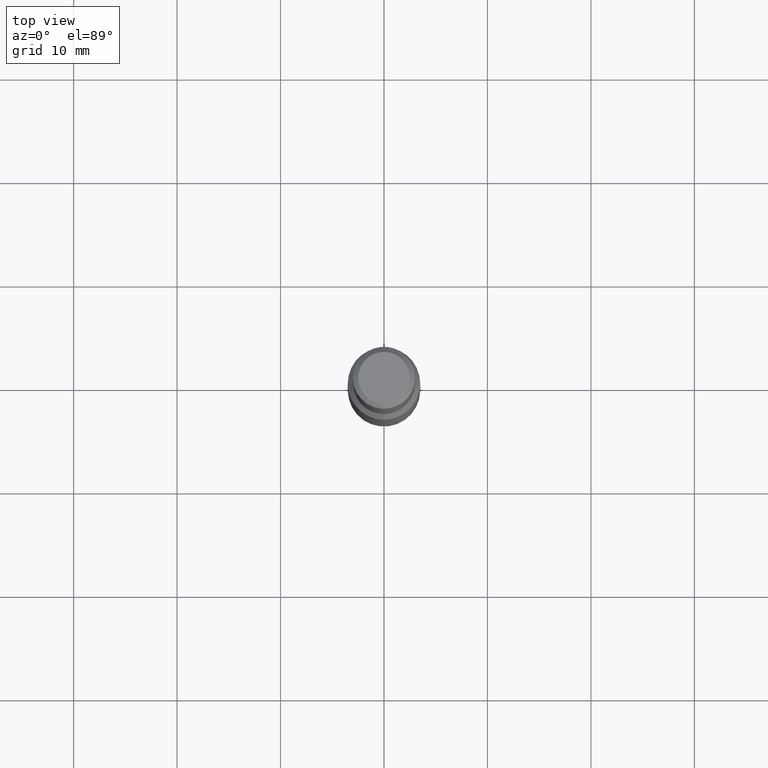
[diagram: clean part render]
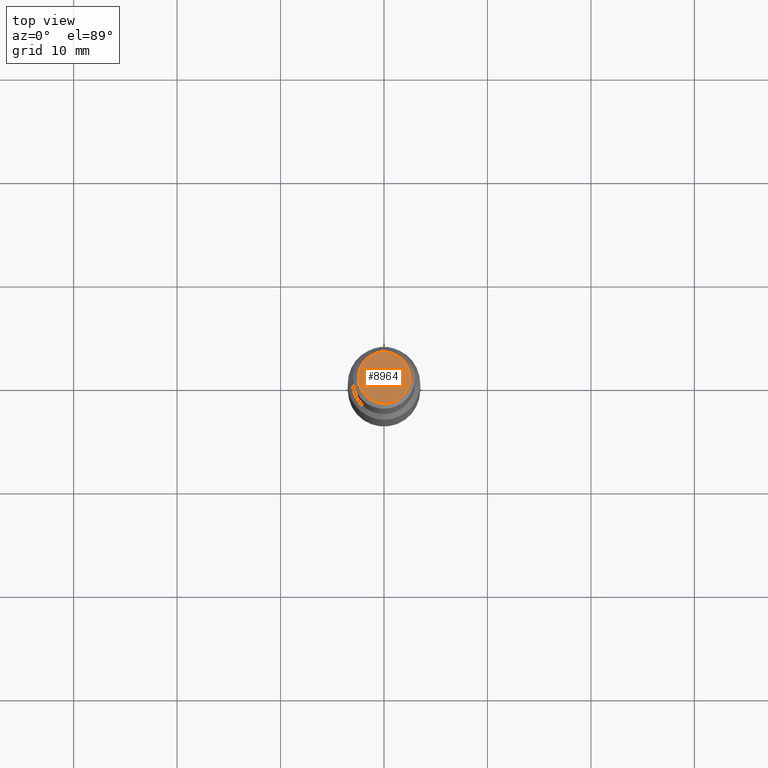
[diagram: same view with one face highlighted and labeled with its STEP entity id]
A machine part, top view. The second image highlights one B-rep face of the part: STEP entity #8964.
In plain terms, the highlighted planar face has unit normal (0, 0, 1).
Its self-contained STEP definition (entity closure, byte-faithful):
#1208 = EDGE_LOOP ( 'NONE', ( #11738, #10361 ) ) ;
#1403 = DIRECTION ( 'NONE',  ( 0.0000000000000000000, 0.0000000000000000000, 1.000000000000000000 ) ) ;
#1758 = CIRCLE ( 'NONE', #4256, 2.499999999999995100 ) ;
#2228 = AXIS2_PLACEMENT_3D ( 'NONE', #6284, #1403, #4271 ) ;
#2695 = FACE_OUTER_BOUND ( 'NONE', #1208, .T. ) ;
#2730 = PLANE ( 'NONE',  #9399 ) ;
#2831 = VERTEX_POINT ( 'NONE', #4295 ) ;
#3778 = CARTESIAN_POINT ( 'NONE',  ( -2.499999999999995100, 0.0000000000000000000, 70.00000000000000000 ) ) ;
#4256 = AXIS2_PLACEMENT_3D ( 'NONE', #12111, #8013, #4945 ) ;
#4271 = DIRECTION ( 'NONE',  ( 1.000000000000000000, 0.0000000000000000000, 0.0000000000000000000 ) ) ;
#4295 = CARTESIAN_POINT ( 'NONE',  ( 2.499999999999995100, 3.367778697655218500E-016, 70.00000000000000000 ) ) ;
#4945 = DIRECTION ( 'NONE',  ( 1.000000000000000000, 0.0000000000000000000, 0.0000000000000000000 ) ) ;
#5385 = CIRCLE ( 'NONE', #2228, 2.499999999999995100 ) ;
#5769 = DIRECTION ( 'NONE',  ( 0.0000000000000000000, 0.0000000000000000000, 1.000000000000000000 ) ) ;
#6284 = CARTESIAN_POINT ( 'NONE',  ( 0.0000000000000000000, 0.0000000000000000000, 70.00000000000000000 ) ) ;
#6434 = EDGE_CURVE ( 'NONE', #10827, #2831, #5385, .T. ) ;
#8013 = DIRECTION ( 'NONE',  ( 0.0000000000000000000, 0.0000000000000000000, 1.000000000000000000 ) ) ;
#8964 = ADVANCED_FACE ( 'NONE', ( #2695 ), #2730, .T. ) ;
#9399 = AXIS2_PLACEMENT_3D ( 'NONE', #10714, #5769, #10757 ) ;
#9795 = EDGE_CURVE ( 'NONE', #2831, #10827, #1758, .T. ) ;
#10361 = ORIENTED_EDGE ( 'NONE', *, *, #9795, .T. ) ;
#10714 = CARTESIAN_POINT ( 'NONE',  ( 0.0000000000000000000, 0.0000000000000000000, 70.00000000000000000 ) ) ;
#10757 = DIRECTION ( 'NONE',  ( 1.000000000000000000, 0.0000000000000000000, -0.0000000000000000000 ) ) ;
#10827 = VERTEX_POINT ( 'NONE', #3778 ) ;
#11738 = ORIENTED_EDGE ( 'NONE', *, *, #6434, .T. ) ;
#12111 = CARTESIAN_POINT ( 'NONE',  ( 0.0000000000000000000, 0.0000000000000000000, 70.00000000000000000 ) ) ;